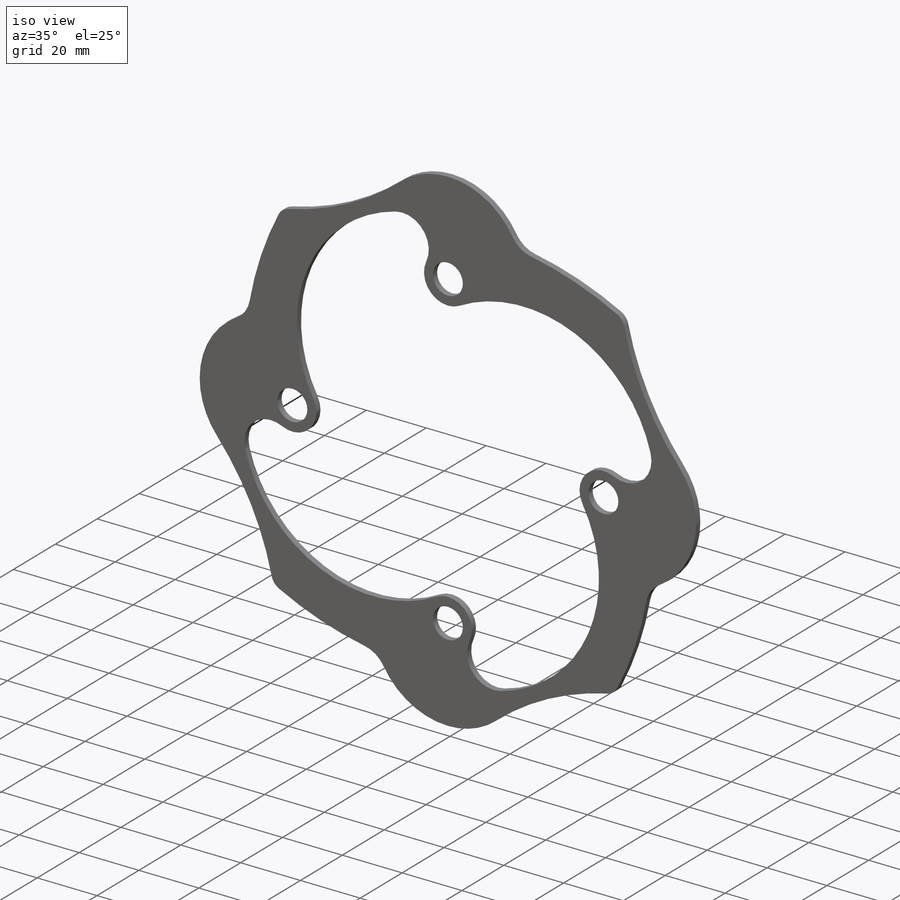
[diagram: iso view]
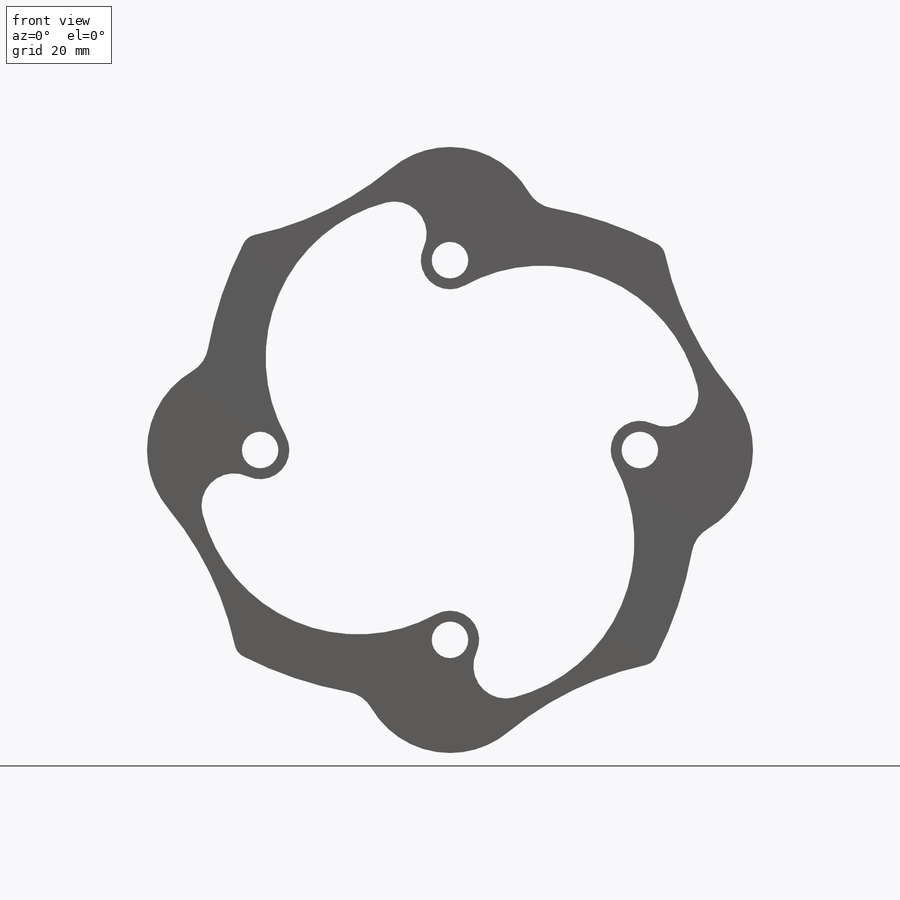
[diagram: front view]
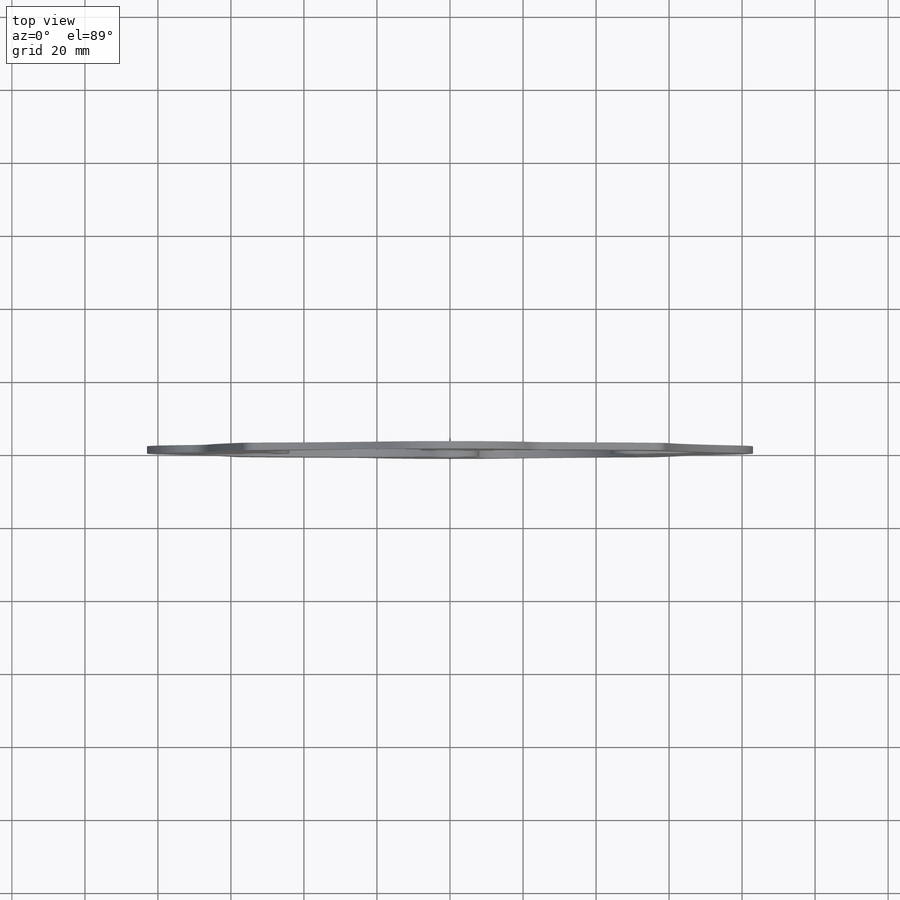
[diagram: top view]
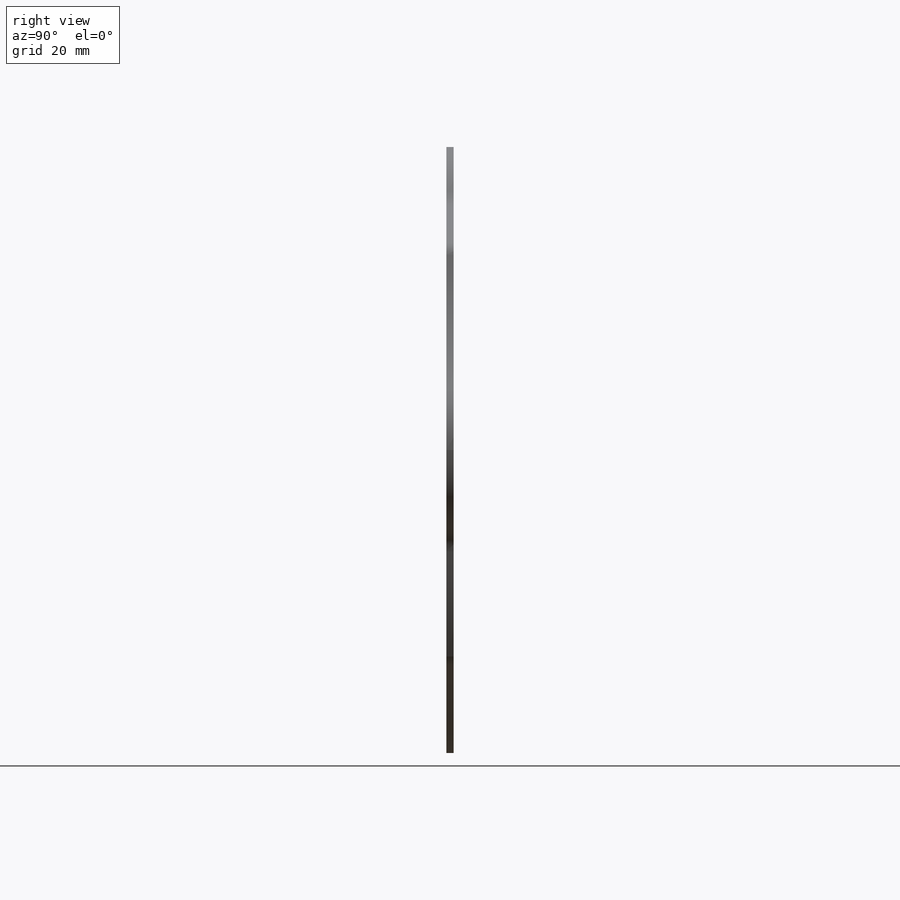
[diagram: right view]
SOLIDWORKS PART (.sldprt)
format: sldprt  version: not decoded by parser v0  size: 275,456 bytes
history: native  units: mm
features: sketch x4, plane x3, material x1, extrude x1, pattern_circular x1 (+8 scaffold rows collapsed)
feature tree (18):
  scaffold x8  (default folders/planes/origin — collapsed)
  material  "Material <nicht festgelegt>"
  plane  "Ebene vorne"
  plane  "Ebene oben"
  plane  "Ebene rechts"
  sketch  "Geometrie"  dims[c1.D1=91.0mm c1.D2=91.0mm c1.D4=166.0mm c2.D1=182.0mm c2.D5=~1.206665mm c2.D11=~70.40303mm c2.D2=45.5mm c3.D2=45.0deg c3.D3=~135.736776mm c4.D3=45.0deg c4.D5=50.0mm c4.D6=60.0mm c4.D7=70.0mm c4.D8=50.0mm c4.D9=60.0mm c4.D10=70.0mm]
  sketch  "Außenkontur"  dims[c1.D1=15.0mm c1.D2=15.0mm c1.D3=40.0mm c1.D4=15.0mm c2.D1=10.0mm c2.D2=25.0mm c3.D1=16.0mm c3.D2=16.0mm c3.D7=~40.917896mm c3.D11=~24.765205mm c3.D12=8.0mm c3.D13=10.0mm c3.D14=44.0mm c3.D15=64.5mm c3.D9=3.0mm c3.D10=~88.280792mm c4.D15=~24.765205mm c4.D13=25.0mm c5.D15=50.0mm c5.D7=25.0mm c6.D15=9.0mm c6.D16=88.0mm c6.D17=63.0mm c6.D18=22.5mm c6.D19=5.0mm c6.D9=4.5mm c6.D10=10.0mm c6.D1=1.0mm c6.D2=1.0mm c6.D3=80.0mm c6.D4=182.0mm c7.D4=17.0deg c7.D5=182.0mm c8.D5=45.0deg c8.D6=80.0mm c8.D7=~74.433405mm c9.D7=108.0deg c9.D8=80.0mm c10.D8=108.0deg c10.D9=~10.424627mm c11.D9=56.0deg c11.D10=~5.656854mm c12.D10=56.0deg c12.D11=1.5mm c13.D10=1.5mm c13.D3=~69.402497mm c14.D3=17.0deg c14.D15=~73.835248mm]
  sketch  "Innenkontur"  dims[c1.D1=63.0mm c1.D2=3.0mm c1.D3=89.5mm c1.D4=22.5mm c1.D5=8.0mm c1.D6=~22.692501mm c1.D7=88.0mm c2.D3=88.0mm c2.D4=~8.248485mm c2.D7=1.5mm c3.D3=1.5mm]
  extrude  "Linear austragen1"  Depth=2mm
  sketch  "Skizze1"
  pattern_circular  "Kreismuster1"  Count=4 Angle=360deg
decode coverage: 5 of 6 modeling features carry decoded parameters
note: ~ marks probable driven/reference dimensions
note: suppression state not decoded; provenance and decode notes live in map.json
